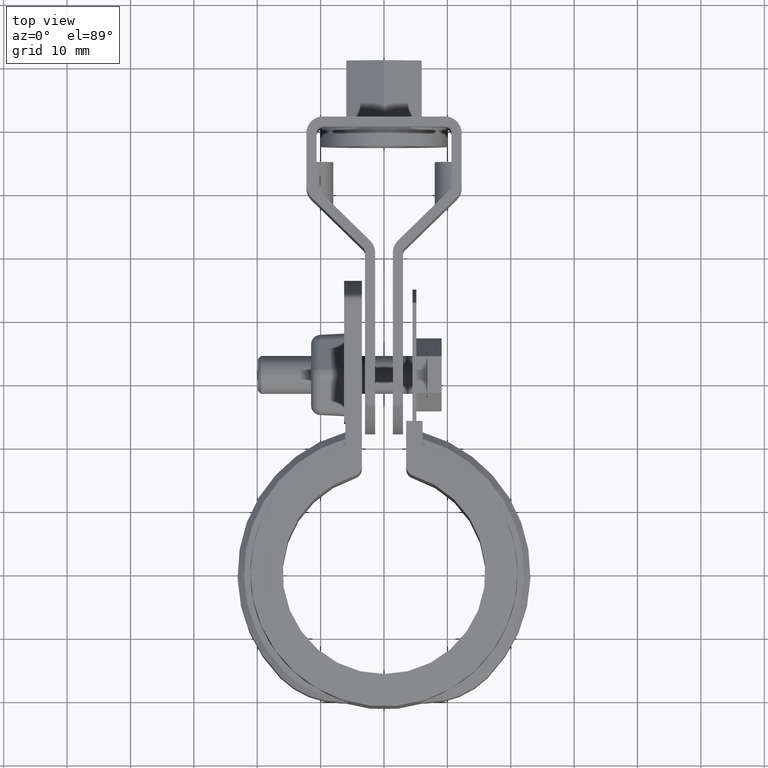
[diagram: clean part render]
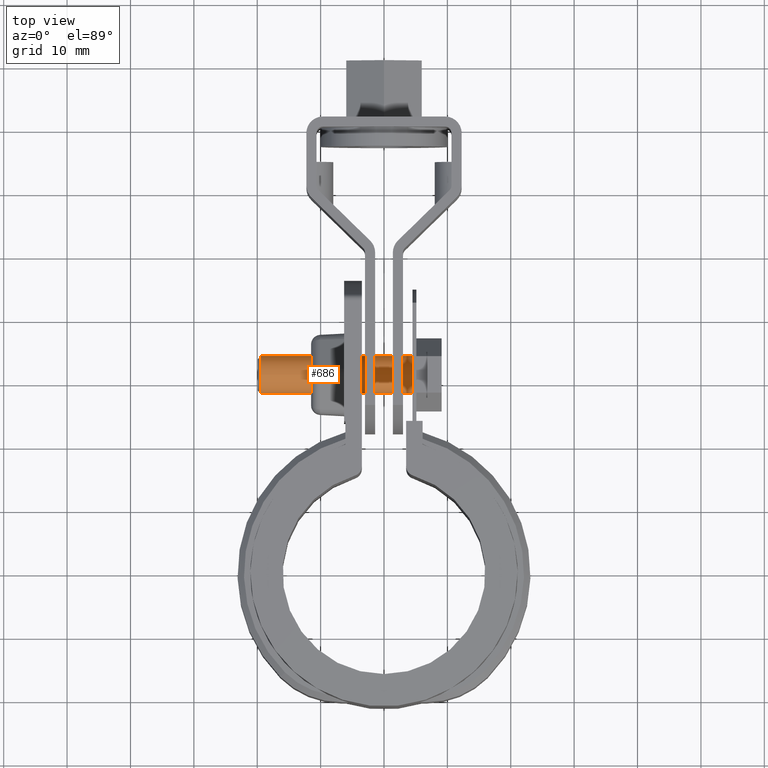
[diagram: same view with one face highlighted and labeled with its STEP entity id]
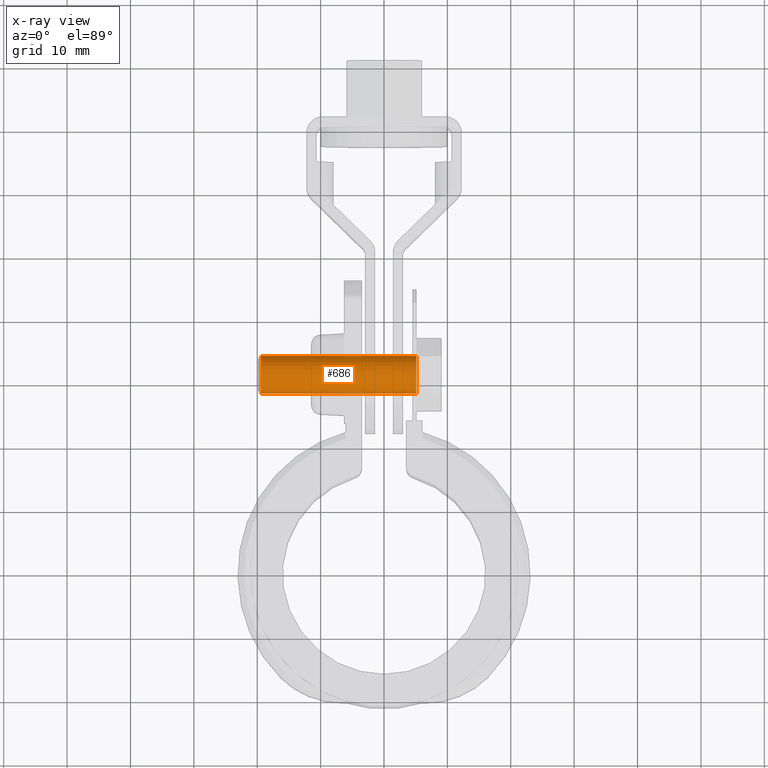
[diagram: x-ray of the same camera — body ghosted, the highlighted face saturated]
A machine part, top view. The second image highlights one B-rep face of the part: STEP entity #686.
The next image is the same camera in x-ray: the body ghosted, the highlighted face saturated — about 1% of this face is hidden behind the body in this view.
In plain terms, the highlighted cylindrical surface (bore or boss wall) has radius 3 mm, axis along (1, 0, 0).
Its self-contained STEP definition (entity closure, byte-faithful):
#686 = ADVANCED_FACE( '', ( #1386, #1387 ), #1388, .T. );
#1386 = FACE_OUTER_BOUND( '', #2611, .T. );
#1387 = FACE_OUTER_BOUND( '', #2612, .T. );
#1388 = CYLINDRICAL_SURFACE( '', #2613, 3.00000000000002 );
#2611 = EDGE_LOOP( '', ( #6067 ) );
#2612 = EDGE_LOOP( '', ( #6068 ) );
#2613 = AXIS2_PLACEMENT_3D( '', #6069, #6070, #6071 );
#6067 = ORIENTED_EDGE( '', *, *, #7032, .T. );
#6068 = ORIENTED_EDGE( '', *, *, #7026, .F. );
#6069 = CARTESIAN_POINT( '', ( 12.8770244734530, 31.4443584449268, -12.5000000000002 ) );
#6070 = DIRECTION( '', ( 1.00000000000000, 0.000000000000000, 0.000000000000000 ) );
#6071 = DIRECTION( '', ( 0.000000000000000, 0.000000000000000, 1.00000000000000 ) );
#7026 = EDGE_CURVE( '', #8553, #8553, #8554, .F. );
#7032 = EDGE_CURVE( '', #8563, #8563, #8564, .T. );
#8553 = VERTEX_POINT( '', #12283 );
#8554 = CIRCLE( '', #12284, 3.00000000000002 );
#8563 = VERTEX_POINT( '', #12298 );
#8564 = CIRCLE( '', #12299, 3.00000000000002 );
#12283 = CARTESIAN_POINT( '', ( 5.10000000000007, 31.4443584449268, -9.50000000000015 ) );
#12284 = AXIS2_PLACEMENT_3D( '', #13531, #13532, #13533 );
#12298 = CARTESIAN_POINT( '', ( -19.3999999999999, 31.4443584449268, -15.5000000000002 ) );
#12299 = AXIS2_PLACEMENT_3D( '', #13539, #13540, #13541 );
#13531 = CARTESIAN_POINT( '', ( 5.10000000000007, 31.4443584449268, -12.5000000000002 ) );
#13532 = DIRECTION( '', ( -1.00000000000000, 0.000000000000000, 0.000000000000000 ) );
#13533 = DIRECTION( '', ( 0.000000000000000, 0.000000000000000, 1.00000000000000 ) );
#13539 = CARTESIAN_POINT( '', ( -19.3999999999999, 31.4443584449268, -12.5000000000002 ) );
#13540 = DIRECTION( '', ( 1.00000000000000, 0.000000000000000, 0.000000000000000 ) );
#13541 = DIRECTION( '', ( 0.000000000000000, 0.000000000000000, -1.00000000000000 ) );